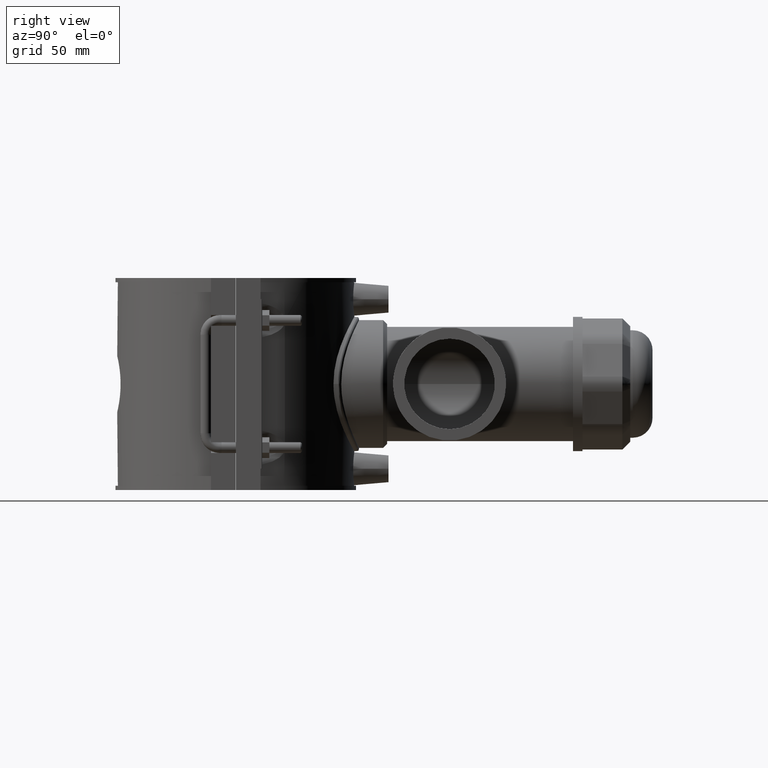
[diagram: clean part render]
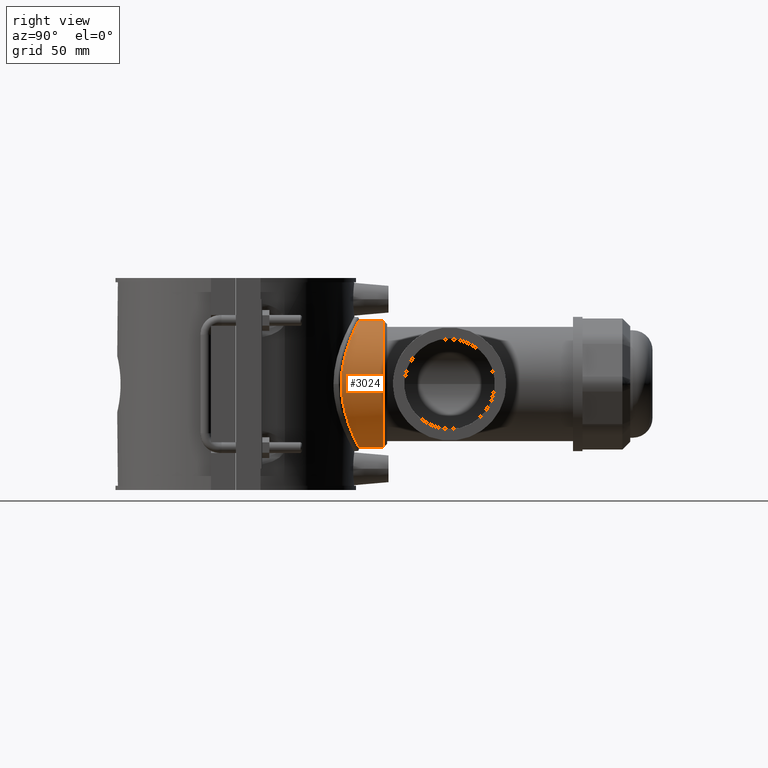
[diagram: same view with one face highlighted and labeled with its STEP entity id]
A machine part, right view. The second image highlights one B-rep face of the part: STEP entity #3024.
In plain terms, the highlighted cylindrical surface (bore or boss wall) has radius 35.53 mm, axis along (0, 1, 0).
Its self-contained STEP definition (entity closure, byte-faithful):
#600=FACE_BOUND('',#943,.T.);
#659=B_SPLINE_CURVE_WITH_KNOTS('',3,(#4508,#4509,#4510,#4511,#4512,#4513,
#4514,#4515,#4516,#4517,#4518,#4519,#4520,#4521,#4522,#4523,#4524,#4525,
#4526,#4527,#4528,#4529,#4530,#4531,#4532,#4533,#4534,#4535,#4536,#4537,
#4538,#4539,#4540,#4541,#4542,#4543,#4544,#4545,#4546,#4547,#4548,#4549,
#4550,#4551,#4552,#4553,#4554,#4555,#4556,#4557,#4558,#4559,#4560,#4561,
#4562,#4563,#4564,#4565,#4566,#4567,#4568,#4569,#4570,#4571,#4572,#4573),
 .UNSPECIFIED.,.T.,.F.,(4,2,2,2,2,2,2,2,2,2,2,2,2,2,2,2,2,2,2,2,2,2,2,2,
2,2,2,2,2,2,2,2,4),(0.,0.685110748504913,1.37022149700983,2.05533224551474,
2.74044299401965,3.42336372475323,4.1062844554868,4.78920518622038,5.47212591695395,
6.15504664768752,6.8379673784211,7.52088810915467,8.20380883988824,8.88891958839316,
9.57403033689807,10.259141085403,10.9442518339079,11.6293625824128,12.3144733309177,
12.9995840794226,13.6846948279275,14.3676155586611,15.0505362893947,15.7334570201283,
16.4163777508618,17.0992984815954,17.782219212329,18.4651399430626,19.1480606737961,
19.8331714223011,20.518282170806,21.2033929193109,21.8885036678158),
 .UNSPECIFIED.);
#705=CYLINDRICAL_SURFACE('',#3212,35.53);
#755=FACE_OUTER_BOUND('',#942,.T.);
#942=EDGE_LOOP('',(#2025));
#943=EDGE_LOOP('',(#2026));
#1183=CIRCLE('',#3213,35.53);
#1294=VERTEX_POINT('',#4505);
#1295=VERTEX_POINT('',#4507);
#1589=EDGE_CURVE('',#1294,#1294,#1183,.T.);
#1590=EDGE_CURVE('',#1295,#1295,#659,.T.);
#2025=ORIENTED_EDGE('',*,*,#1589,.F.);
#2026=ORIENTED_EDGE('',*,*,#1590,.F.);
#3024=ADVANCED_FACE('',(#755,#600),#705,.T.);
#3212=AXIS2_PLACEMENT_3D('',#4504,#3506,#3507);
#3213=AXIS2_PLACEMENT_3D('',#4506,#3508,#3509);
#3506=DIRECTION('center_axis',(0.,1.,3.06161699786838E-16));
#3507=DIRECTION('ref_axis',(0.,0.,1.));
#3508=DIRECTION('center_axis',(0.,1.,3.06161699786838E-16));
#3509=DIRECTION('ref_axis',(0.,0.,-1.));
#4504=CARTESIAN_POINT('Origin',(0.,42.1,-3.94948592725021E-15));
#4505=CARTESIAN_POINT('',(4.35117007737055E-15,82.05,35.53));
#4506=CARTESIAN_POINT('Origin',(0.,82.05,8.28167397923399E-15));
#4507=CARTESIAN_POINT('',(35.53,58.7287723352021,8.32667268468867E-15));
#4508=CARTESIAN_POINT('Ctrl Pts',(35.53,58.7287723352021,8.32667268468867E-15));
#4509=CARTESIAN_POINT('Ctrl Pts',(35.53,58.7287723352021,2.28370249501639));
#4510=CARTESIAN_POINT('Ctrl Pts',(35.3063839190842,58.8659069060801,4.62669726218271));
#4511=CARTESIAN_POINT('Ctrl Pts',(34.3846508496993,59.409018893331,9.2543427873312));
#4512=CARTESIAN_POINT('Ctrl Pts',(33.6869297363937,59.814030683489,11.5391856630722));
#4513=CARTESIAN_POINT('Ctrl Pts',(31.8625874673488,60.8054503068097,15.8977309705442));
#4514=CARTESIAN_POINT('Ctrl Pts',(30.7345104301794,61.391341571217,17.9757167066646));
#4515=CARTESIAN_POINT('Ctrl Pts',(28.1430520510378,62.6216861164835,21.8106658415184));
#4516=CARTESIAN_POINT('Ctrl Pts',(26.6792788115378,63.2650025189065,23.5677290595783));
#4517=CARTESIAN_POINT('Ctrl Pts',(23.5727022330893,64.4868539437252,26.6743056380267));
#4518=CARTESIAN_POINT('Ctrl Pts',(21.8181201690479,65.1109464973233,28.1373515736892));
#4519=CARTESIAN_POINT('Ctrl Pts',(17.9822108734417,66.2729644237185,30.7307828362634));
#4520=CARTESIAN_POINT('Ctrl Pts',(15.9007561084102,66.81002161737,31.8613684501071));
#4521=CARTESIAN_POINT('Ctrl Pts',(11.5348915552712,67.7005119377176,33.6886798891151));
#4522=CARTESIAN_POINT('Ctrl Pts',(9.24627263226206,68.0541593855019,34.3868679744085));
#4523=CARTESIAN_POINT('Ctrl Pts',(4.61707440404158,68.5240453506529,35.3076885486875));
#4524=CARTESIAN_POINT('Ctrl Pts',(2.27640243577858,68.64,35.53));
#4525=CARTESIAN_POINT('Ctrl Pts',(-2.27640243577858,68.64,35.53));
#4526=CARTESIAN_POINT('Ctrl Pts',(-4.61707440404158,68.5240453506529,35.3076885486875));
#4527=CARTESIAN_POINT('Ctrl Pts',(-9.24627263226206,68.0541593855019,34.3868679744085));
#4528=CARTESIAN_POINT('Ctrl Pts',(-11.5348915552712,67.7005119377176,33.6886798891151));
#4529=CARTESIAN_POINT('Ctrl Pts',(-15.9007561084102,66.81002161737,31.8613684501071));
#4530=CARTESIAN_POINT('Ctrl Pts',(-17.9822108734417,66.2729644237185,30.7307828362634));
#4531=CARTESIAN_POINT('Ctrl Pts',(-21.8181201690479,65.1109464973233,28.1373515736892));
#4532=CARTESIAN_POINT('Ctrl Pts',(-23.5727022330893,64.4868539437252,26.6743056380267));
#4533=CARTESIAN_POINT('Ctrl Pts',(-26.6792788115378,63.2650025189065,23.5677290595783));
#4534=CARTESIAN_POINT('Ctrl Pts',(-28.1430520510378,62.6216861164835,21.8106658415184));
#4535=CARTESIAN_POINT('Ctrl Pts',(-30.7345104301794,61.391341571217,17.9757167066646));
#4536=CARTESIAN_POINT('Ctrl Pts',(-31.8625874673488,60.8054503068097,15.8977309705442));
#4537=CARTESIAN_POINT('Ctrl Pts',(-33.6869297363937,59.814030683489,11.5391856630722));
#4538=CARTESIAN_POINT('Ctrl Pts',(-34.3846508496993,59.409018893331,9.2543427873312));
#4539=CARTESIAN_POINT('Ctrl Pts',(-35.3063839190842,58.8659069060801,4.62669726218271));
#4540=CARTESIAN_POINT('Ctrl Pts',(-35.53,58.7287723352021,2.28370249501639));
#4541=CARTESIAN_POINT('Ctrl Pts',(-35.53,58.7287723352021,-2.28370249501637));
#4542=CARTESIAN_POINT('Ctrl Pts',(-35.3063839190842,58.8659069060801,-4.62669726218269));
#4543=CARTESIAN_POINT('Ctrl Pts',(-34.3846508496993,59.409018893331,-9.25434278733118));
#4544=CARTESIAN_POINT('Ctrl Pts',(-33.6869297363937,59.814030683489,-11.5391856630721));
#4545=CARTESIAN_POINT('Ctrl Pts',(-31.8625874673488,60.8054503068097,-15.8977309705442));
#4546=CARTESIAN_POINT('Ctrl Pts',(-30.7345104301794,61.391341571217,-17.9757167066646));
#4547=CARTESIAN_POINT('Ctrl Pts',(-28.1430520510378,62.6216861164835,-21.8106658415184));
#4548=CARTESIAN_POINT('Ctrl Pts',(-26.6792788115378,63.2650025189065,-23.5677290595783));
#4549=CARTESIAN_POINT('Ctrl Pts',(-23.5727022330893,64.4868539437252,-26.6743056380267));
#4550=CARTESIAN_POINT('Ctrl Pts',(-21.8181201690479,65.1109464973233,-28.1373515736891));
#4551=CARTESIAN_POINT('Ctrl Pts',(-17.9822108734417,66.2729644237185,-30.7307828362634));
#4552=CARTESIAN_POINT('Ctrl Pts',(-15.9007561084102,66.81002161737,-31.8613684501071));
#4553=CARTESIAN_POINT('Ctrl Pts',(-11.5348915552713,67.7005119377176,-33.6886798891151));
#4554=CARTESIAN_POINT('Ctrl Pts',(-9.24627263226207,68.0541593855019,-34.3868679744085));
#4555=CARTESIAN_POINT('Ctrl Pts',(-4.61707440404158,68.5240453506529,-35.3076885486875));
#4556=CARTESIAN_POINT('Ctrl Pts',(-2.27640243577859,68.64,-35.53));
#4557=CARTESIAN_POINT('Ctrl Pts',(2.27640243577858,68.64,-35.53));
#4558=CARTESIAN_POINT('Ctrl Pts',(4.61707440404157,68.5240453506529,-35.3076885486875));
#4559=CARTESIAN_POINT('Ctrl Pts',(9.24627263226206,68.0541593855019,-34.3868679744085));
#4560=CARTESIAN_POINT('Ctrl Pts',(11.5348915552712,67.7005119377176,-33.6886798891151));
#4561=CARTESIAN_POINT('Ctrl Pts',(15.9007561084102,66.81002161737,-31.8613684501071));
#4562=CARTESIAN_POINT('Ctrl Pts',(17.9822108734417,66.2729644237185,-30.7307828362634));
#4563=CARTESIAN_POINT('Ctrl Pts',(21.8181201690479,65.1109464973233,-28.1373515736891));
#4564=CARTESIAN_POINT('Ctrl Pts',(23.5727022330893,64.4868539437252,-26.6743056380267));
#4565=CARTESIAN_POINT('Ctrl Pts',(26.6792788115378,63.2650025189065,-23.5677290595783));
#4566=CARTESIAN_POINT('Ctrl Pts',(28.1430520510378,62.6216861164835,-21.8106658415184));
#4567=CARTESIAN_POINT('Ctrl Pts',(30.7345104301794,61.391341571217,-17.9757167066646));
#4568=CARTESIAN_POINT('Ctrl Pts',(31.8625874673488,60.8054503068097,-15.8977309705442));
#4569=CARTESIAN_POINT('Ctrl Pts',(33.6869297363937,59.814030683489,-11.5391856630722));
#4570=CARTESIAN_POINT('Ctrl Pts',(34.3846508496993,59.409018893331,-9.2543427873312));
#4571=CARTESIAN_POINT('Ctrl Pts',(35.3063839190842,58.8659069060801,-4.62669726218271));
#4572=CARTESIAN_POINT('Ctrl Pts',(35.53,58.7287723352021,-2.28370249501637));
#4573=CARTESIAN_POINT('Ctrl Pts',(35.53,58.7287723352021,9.43689570931383E-15));